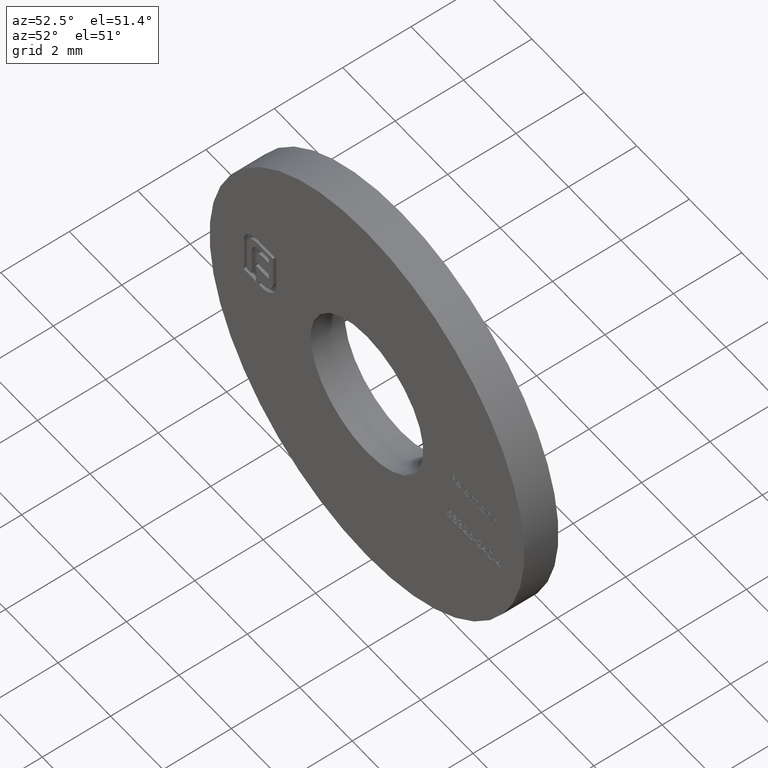
[diagram: clean part render]
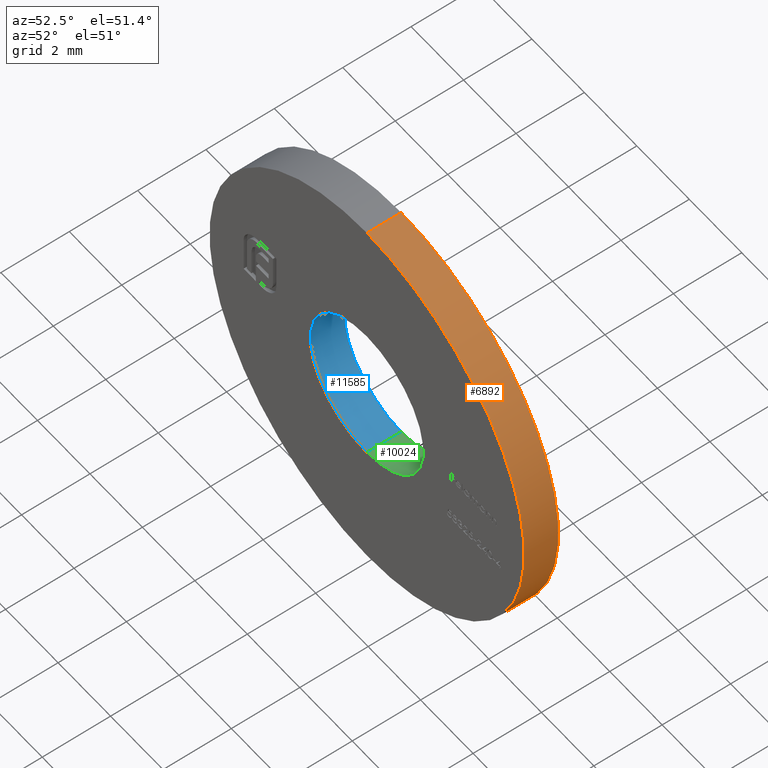
[diagram: same view with three faces highlighted in distinct colors, each labeled with its STEP entity id]
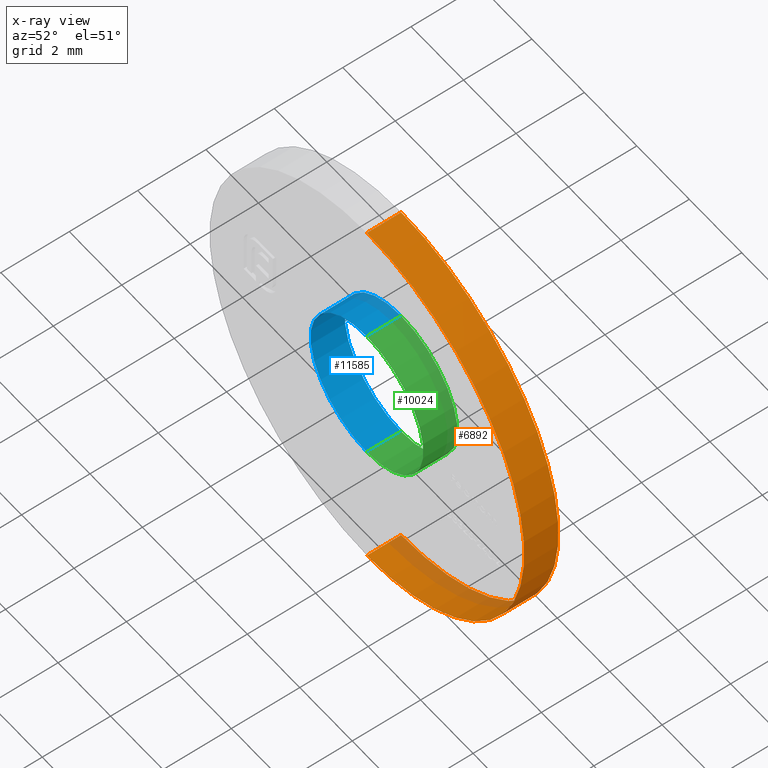
[diagram: x-ray of the same camera — body ghosted, the three highlighted faces saturated]
A machine part, auxiliary view with three faces highlighted in distinct colors.
The next image is the same camera in x-ray (body ghosted, the three faces saturated) — at least one of them is partly hidden behind the body in this view.
Their STEP definitions:

[orange] entity #6892 — the highlighted cylindrical surface (partial cylindrical patch) has radius 6 mm, axis along (-0, -1, -0).
#213 = EDGE_CURVE ( 'NONE', #12001, #12962, #13211, .T. ) ;
#356 = DIRECTION ( 'NONE',  ( -0.000000000000000000, -1.000000000000000000, -0.000000000000000000 ) ) ;
#418 = VERTEX_POINT ( 'NONE', #13157 ) ;
#644 = DIRECTION ( 'NONE',  ( 0.000000000000000000, 1.000000000000000000, 0.000000000000000000 ) ) ;
#1218 = CARTESIAN_POINT ( 'NONE',  ( 0.000000000000000000, 0.5000000000000000000, -6.000000000000000888 ) ) ;
#1447 = EDGE_CURVE ( 'NONE', #12001, #418, #7489, .T. ) ;
#1593 = EDGE_LOOP ( 'NONE', ( #10023, #8256, #14032, #7551 ) ) ;
#1833 = CARTESIAN_POINT ( 'NONE',  ( 0.000000000000000000, 0.5000000000000000000, -6.000000000000000888 ) ) ;
#2152 = EDGE_CURVE ( 'NONE', #12962, #3618, #11316, .T. ) ;
#3618 = VERTEX_POINT ( 'NONE', #10906 ) ;
#3763 = EDGE_CURVE ( 'NONE', #418, #3618, #5729, .T. ) ;
#3833 = DIRECTION ( 'NONE',  ( 0.000000000000000000, 1.000000000000000000, 0.000000000000000000 ) ) ;
#4061 = CARTESIAN_POINT ( 'NONE',  ( 7.347880794884120722E-16, 0.5000000000000000000, 6.000000000000000888 ) ) ;
#5487 = CYLINDRICAL_SURFACE ( 'NONE', #5896, 6.000000000000000888 ) ;
#5729 = CIRCLE ( 'NONE', #8416, 6.000000000000000888 ) ;
#5896 = AXIS2_PLACEMENT_3D ( 'NONE', #12317, #6045, #9837 ) ;
#6045 = DIRECTION ( 'NONE',  ( -0.000000000000000000, -1.000000000000000000, -0.000000000000000000 ) ) ;
#6892 = ADVANCED_FACE ( 'NONE', ( #13807 ), #5487, .T. ) ;
#7489 = LINE ( 'NONE', #4061, #10413 ) ;
#7551 = ORIENTED_EDGE ( 'NONE', *, *, #2152, .F. ) ;
#8256 = ORIENTED_EDGE ( 'NONE', *, *, #1447, .T. ) ;
#8416 = AXIS2_PLACEMENT_3D ( 'NONE', #14646, #644, #9473 ) ;
#9473 = DIRECTION ( 'NONE',  ( 0.000000000000000000, 0.000000000000000000, 1.000000000000000000 ) ) ;
#9837 = DIRECTION ( 'NONE',  ( 0.000000000000000000, 0.000000000000000000, -1.000000000000000000 ) ) ;
#10023 = ORIENTED_EDGE ( 'NONE', *, *, #213, .F. ) ;
#10413 = VECTOR ( 'NONE', #356, 1000.000000000000000 ) ;
#10906 = CARTESIAN_POINT ( 'NONE',  ( 0.000000000000000000, -0.5000000000000000000, -6.000000000000000888 ) ) ;
#11316 = LINE ( 'NONE', #1833, #16024 ) ;
#11374 = CARTESIAN_POINT ( 'NONE',  ( 0.000000000000000000, 0.5000000000000000000, 0.000000000000000000 ) ) ;
#12001 = VERTEX_POINT ( 'NONE', #14546 ) ;
#12317 = CARTESIAN_POINT ( 'NONE',  ( 0.000000000000000000, 0.5000000000000000000, 0.000000000000000000 ) ) ;
#12665 = DIRECTION ( 'NONE',  ( 0.000000000000000000, 0.000000000000000000, 1.000000000000000000 ) ) ;
#12962 = VERTEX_POINT ( 'NONE', #1218 ) ;
#13157 = CARTESIAN_POINT ( 'NONE',  ( 7.347880794884120722E-16, -0.5000000000000000000, 6.000000000000000888 ) ) ;
#13211 = CIRCLE ( 'NONE', #13582, 6.000000000000000888 ) ;
#13582 = AXIS2_PLACEMENT_3D ( 'NONE', #11374, #3833, #12665 ) ;
#13807 = FACE_OUTER_BOUND ( 'NONE', #1593, .T. ) ;
#14032 = ORIENTED_EDGE ( 'NONE', *, *, #3763, .T. ) ;
#14546 = CARTESIAN_POINT ( 'NONE',  ( 7.347880794884120722E-16, 0.5000000000000000000, 6.000000000000000888 ) ) ;
#14646 = CARTESIAN_POINT ( 'NONE',  ( 0.000000000000000000, -0.5000000000000000000, 0.000000000000000000 ) ) ;
#15425 = DIRECTION ( 'NONE',  ( -0.000000000000000000, -1.000000000000000000, -0.000000000000000000 ) ) ;
#16024 = VECTOR ( 'NONE', #15425, 1000.000000000000000 ) ;

[blue] entity #11585 — the highlighted cylindrical surface (partial cylindrical patch) has radius 2.15 mm, axis along (-0, -1, -0).
#145 = CARTESIAN_POINT ( 'NONE',  ( 0.000000000000000000, 0.5000000000000000000, -2.149999999999999911 ) ) ;
#363 = LINE ( 'NONE', #763, #5904 ) ;
#431 = CARTESIAN_POINT ( 'NONE',  ( 2.632990618166809235E-16, 0.5000000000000000000, 2.149999999999999911 ) ) ;
#584 = ORIENTED_EDGE ( 'NONE', *, *, #1191, .F. ) ;
#763 = CARTESIAN_POINT ( 'NONE',  ( 0.000000000000000000, 0.5000000000000000000, -2.149999999999999911 ) ) ;
#1117 = CARTESIAN_POINT ( 'NONE',  ( 0.000000000000000000, 0.5000000000000000000, 0.000000000000000000 ) ) ;
#1191 = EDGE_CURVE ( 'NONE', #8318, #12217, #363, .T. ) ;
#1849 = AXIS2_PLACEMENT_3D ( 'NONE', #1117, #12373, #9785 ) ;
#2285 = DIRECTION ( 'NONE',  ( 0.000000000000000000, 1.000000000000000000, 0.000000000000000000 ) ) ;
#2834 = EDGE_CURVE ( 'NONE', #11875, #8787, #8320, .T. ) ;
#2919 = EDGE_CURVE ( 'NONE', #12217, #8787, #6158, .T. ) ;
#2949 = EDGE_CURVE ( 'NONE', #8318, #11875, #8705, .T. ) ;
#3680 = AXIS2_PLACEMENT_3D ( 'NONE', #12562, #11220, #16104 ) ;
#3681 = CARTESIAN_POINT ( 'NONE',  ( 0.000000000000000000, -0.5000000000000000000, -2.149999999999999911 ) ) ;
#5904 = VECTOR ( 'NONE', #15886, 1000.000000000000000 ) ;
#5980 = ORIENTED_EDGE ( 'NONE', *, *, #2949, .T. ) ;
#6158 = CIRCLE ( 'NONE', #15150, 2.149999999999999911 ) ;
#6411 = CYLINDRICAL_SURFACE ( 'NONE', #3680, 2.149999999999999911 ) ;
#8098 = VECTOR ( 'NONE', #13315, 1000.000000000000000 ) ;
#8318 = VERTEX_POINT ( 'NONE', #145 ) ;
#8320 = LINE ( 'NONE', #8414, #8098 ) ;
#8414 = CARTESIAN_POINT ( 'NONE',  ( 2.632990618166809235E-16, 0.5000000000000000000, 2.149999999999999911 ) ) ;
#8520 = CARTESIAN_POINT ( 'NONE',  ( 0.000000000000000000, -0.5000000000000000000, 0.000000000000000000 ) ) ;
#8705 = CIRCLE ( 'NONE', #1849, 2.149999999999999911 ) ;
#8787 = VERTEX_POINT ( 'NONE', #9137 ) ;
#9137 = CARTESIAN_POINT ( 'NONE',  ( 2.632990618166809235E-16, -0.5000000000000000000, 2.149999999999999911 ) ) ;
#9785 = DIRECTION ( 'NONE',  ( 0.000000000000000000, 0.000000000000000000, 1.000000000000000000 ) ) ;
#10206 = ORIENTED_EDGE ( 'NONE', *, *, #2919, .F. ) ;
#11128 = FACE_OUTER_BOUND ( 'NONE', #15589, .T. ) ;
#11220 = DIRECTION ( 'NONE',  ( -0.000000000000000000, -1.000000000000000000, -0.000000000000000000 ) ) ;
#11585 = ADVANCED_FACE ( 'NONE', ( #11128 ), #6411, .F. ) ;
#11875 = VERTEX_POINT ( 'NONE', #431 ) ;
#12217 = VERTEX_POINT ( 'NONE', #3681 ) ;
#12373 = DIRECTION ( 'NONE',  ( 0.000000000000000000, 1.000000000000000000, 0.000000000000000000 ) ) ;
#12562 = CARTESIAN_POINT ( 'NONE',  ( 0.000000000000000000, 0.5000000000000000000, 0.000000000000000000 ) ) ;
#13315 = DIRECTION ( 'NONE',  ( -0.000000000000000000, -1.000000000000000000, -0.000000000000000000 ) ) ;
#14903 = ORIENTED_EDGE ( 'NONE', *, *, #2834, .T. ) ;
#15150 = AXIS2_PLACEMENT_3D ( 'NONE', #8520, #2285, #16192 ) ;
#15589 = EDGE_LOOP ( 'NONE', ( #5980, #14903, #10206, #584 ) ) ;
#15886 = DIRECTION ( 'NONE',  ( -0.000000000000000000, -1.000000000000000000, -0.000000000000000000 ) ) ;
#16104 = DIRECTION ( 'NONE',  ( 0.000000000000000000, 0.000000000000000000, -1.000000000000000000 ) ) ;
#16192 = DIRECTION ( 'NONE',  ( 0.000000000000000000, 0.000000000000000000, 1.000000000000000000 ) ) ;

[green] entity #10024 — the highlighted cylindrical surface (partial cylindrical patch) has radius 2.15 mm, axis along (-0, -1, -0).
#145 = CARTESIAN_POINT ( 'NONE',  ( 0.000000000000000000, 0.5000000000000000000, -2.149999999999999911 ) ) ;
#323 = CARTESIAN_POINT ( 'NONE',  ( 0.000000000000000000, 0.5000000000000000000, 0.000000000000000000 ) ) ;
#363 = LINE ( 'NONE', #763, #5904 ) ;
#431 = CARTESIAN_POINT ( 'NONE',  ( 2.632990618166809235E-16, 0.5000000000000000000, 2.149999999999999911 ) ) ;
#763 = CARTESIAN_POINT ( 'NONE',  ( 0.000000000000000000, 0.5000000000000000000, -2.149999999999999911 ) ) ;
#1191 = EDGE_CURVE ( 'NONE', #8318, #12217, #363, .T. ) ;
#1229 = ORIENTED_EDGE ( 'NONE', *, *, #11376, .T. ) ;
#1547 = EDGE_CURVE ( 'NONE', #8787, #12217, #8055, .T. ) ;
#1903 = CARTESIAN_POINT ( 'NONE',  ( 0.000000000000000000, -0.5000000000000000000, 0.000000000000000000 ) ) ;
#2418 = EDGE_LOOP ( 'NONE', ( #10285, #1229, #9512, #3266 ) ) ;
#2623 = AXIS2_PLACEMENT_3D ( 'NONE', #323, #14267, #9047 ) ;
#2834 = EDGE_CURVE ( 'NONE', #11875, #8787, #8320, .T. ) ;
#3266 = ORIENTED_EDGE ( 'NONE', *, *, #1547, .F. ) ;
#3681 = CARTESIAN_POINT ( 'NONE',  ( 0.000000000000000000, -0.5000000000000000000, -2.149999999999999911 ) ) ;
#4411 = AXIS2_PLACEMENT_3D ( 'NONE', #9727, #12249, #15849 ) ;
#5780 = DIRECTION ( 'NONE',  ( 0.000000000000000000, 0.000000000000000000, 1.000000000000000000 ) ) ;
#5904 = VECTOR ( 'NONE', #15886, 1000.000000000000000 ) ;
#7820 = CYLINDRICAL_SURFACE ( 'NONE', #4411, 2.149999999999999911 ) ;
#8055 = CIRCLE ( 'NONE', #15035, 2.149999999999999911 ) ;
#8098 = VECTOR ( 'NONE', #13315, 1000.000000000000000 ) ;
#8318 = VERTEX_POINT ( 'NONE', #145 ) ;
#8320 = LINE ( 'NONE', #8414, #8098 ) ;
#8414 = CARTESIAN_POINT ( 'NONE',  ( 2.632990618166809235E-16, 0.5000000000000000000, 2.149999999999999911 ) ) ;
#8787 = VERTEX_POINT ( 'NONE', #9137 ) ;
#9047 = DIRECTION ( 'NONE',  ( 0.000000000000000000, 0.000000000000000000, 1.000000000000000000 ) ) ;
#9137 = CARTESIAN_POINT ( 'NONE',  ( 2.632990618166809235E-16, -0.5000000000000000000, 2.149999999999999911 ) ) ;
#9512 = ORIENTED_EDGE ( 'NONE', *, *, #1191, .T. ) ;
#9727 = CARTESIAN_POINT ( 'NONE',  ( 0.000000000000000000, 0.5000000000000000000, 0.000000000000000000 ) ) ;
#10024 = ADVANCED_FACE ( 'NONE', ( #10545 ), #7820, .F. ) ;
#10285 = ORIENTED_EDGE ( 'NONE', *, *, #2834, .F. ) ;
#10339 = CIRCLE ( 'NONE', #2623, 2.149999999999999911 ) ;
#10545 = FACE_OUTER_BOUND ( 'NONE', #2418, .T. ) ;
#10721 = DIRECTION ( 'NONE',  ( 0.000000000000000000, 1.000000000000000000, 0.000000000000000000 ) ) ;
#11376 = EDGE_CURVE ( 'NONE', #11875, #8318, #10339, .T. ) ;
#11875 = VERTEX_POINT ( 'NONE', #431 ) ;
#12217 = VERTEX_POINT ( 'NONE', #3681 ) ;
#12249 = DIRECTION ( 'NONE',  ( -0.000000000000000000, -1.000000000000000000, -0.000000000000000000 ) ) ;
#13315 = DIRECTION ( 'NONE',  ( -0.000000000000000000, -1.000000000000000000, -0.000000000000000000 ) ) ;
#14267 = DIRECTION ( 'NONE',  ( 0.000000000000000000, 1.000000000000000000, 0.000000000000000000 ) ) ;
#15035 = AXIS2_PLACEMENT_3D ( 'NONE', #1903, #10721, #5780 ) ;
#15849 = DIRECTION ( 'NONE',  ( 0.000000000000000000, 0.000000000000000000, -1.000000000000000000 ) ) ;
#15886 = DIRECTION ( 'NONE',  ( -0.000000000000000000, -1.000000000000000000, -0.000000000000000000 ) ) ;